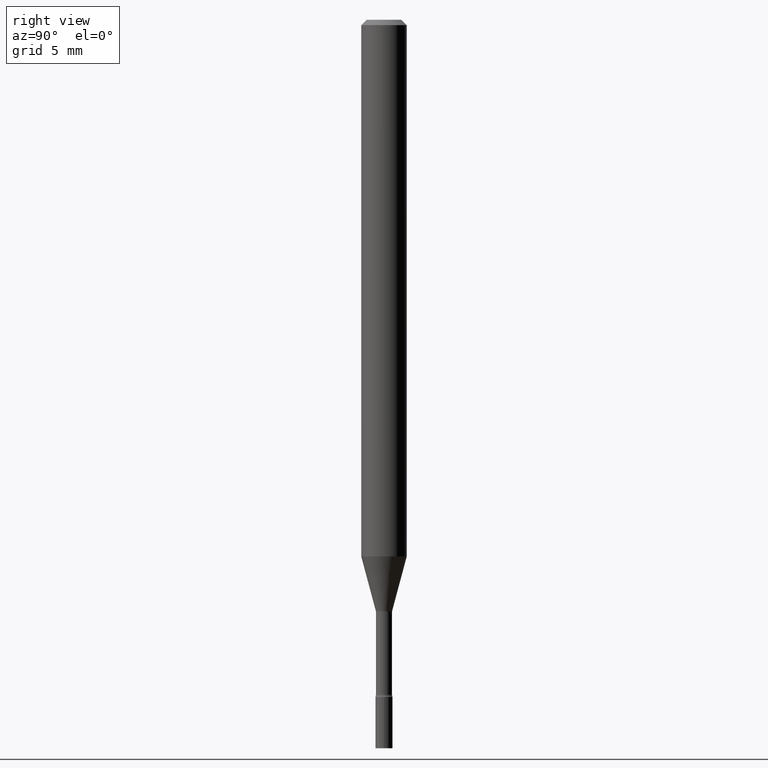
[diagram: clean part render]
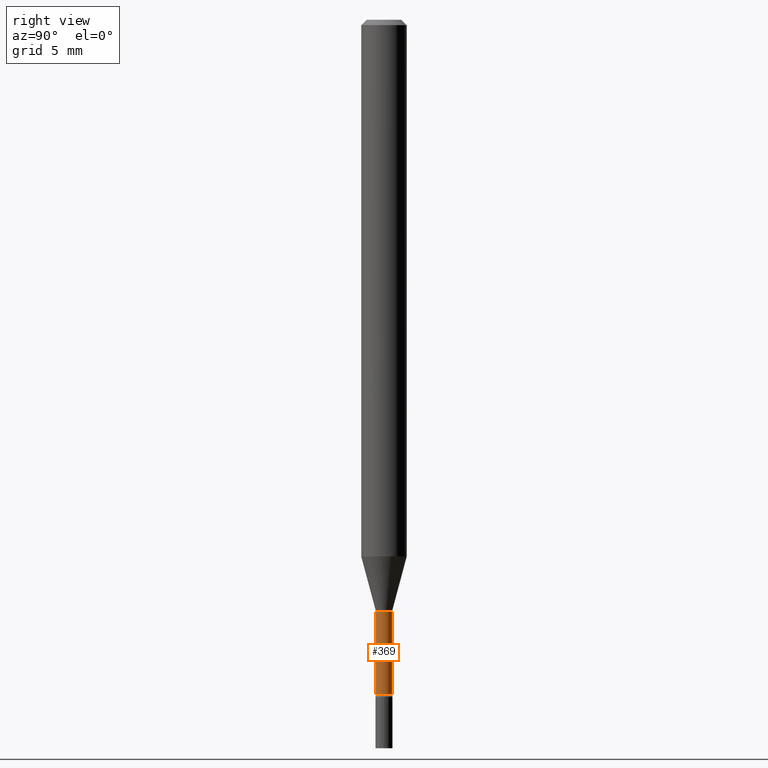
[diagram: same view with one face highlighted and labeled with its STEP entity id]
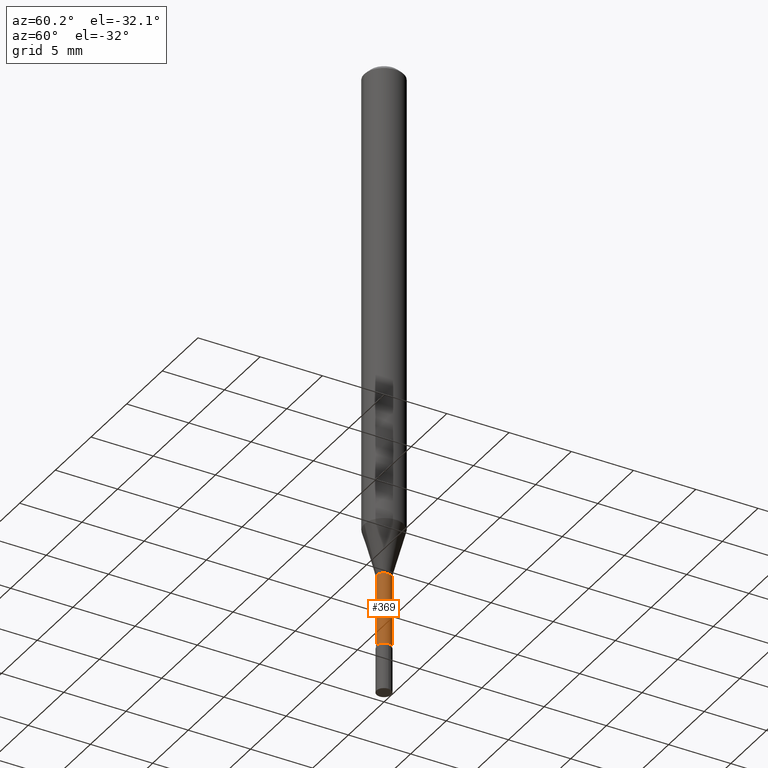
[diagram: same view with one face highlighted and labeled with its STEP entity id]
A machine part, right view. The second image highlights one B-rep face of the part: STEP entity #369.
A second angle (auxiliary view) of the same face is appended — the face is thin or edge-on in the first view.
In plain terms, the highlighted cylindrical surface (edge-blend (fillet) strip) has radius 0.5613 mm, axis along (-0, 0, 1).
Its self-contained STEP definition (entity closure, byte-faithful):
#5 = ORIENTED_EDGE ( 'NONE', *, *, #213, .F. ) ;
#11 = VERTEX_POINT ( 'NONE', #322 ) ;
#18 = VECTOR ( 'NONE', #87, 39.37007874015748143 ) ;
#62 = ORIENTED_EDGE ( 'NONE', *, *, #95, .F. ) ;
#63 = EDGE_CURVE ( 'NONE', #64, #11, #255, .T. ) ;
#64 = VERTEX_POINT ( 'NONE', #510 ) ;
#67 = CARTESIAN_POINT ( 'NONE',  ( 3.976237183870775578E-29, -5.677108513716717305E-15, -1.625974787463811078 ) ) ;
#73 = CARTESIAN_POINT ( 'NONE',  ( -1.543234751768267479E-16, -0.02210000000000568107, -1.625974787463811078 ) ) ;
#81 = LINE ( 'NONE', #165, #18 ) ;
#87 = DIRECTION ( 'NONE',  ( -2.445448240973584878E-29, 3.491510789396586948E-15, 1.000000000000000000 ) ) ;
#95 = EDGE_CURVE ( 'NONE', #104, #208, #181, .T. ) ;
#104 = VERTEX_POINT ( 'NONE', #73 ) ;
#133 = FACE_OUTER_BOUND ( 'NONE', #210, .T. ) ;
#165 = CARTESIAN_POINT ( 'NONE',  ( -1.543234751768666594E-16, -0.02210000000000002587, 7.716238844566465556E-17 ) ) ;
#181 = CIRCLE ( 'NONE', #234, 0.02210000000000000506 ) ;
#208 = VERTEX_POINT ( 'NONE', #292 ) ;
#210 = EDGE_LOOP ( 'NONE', ( #282, #503, #62, #5 ) ) ;
#213 = EDGE_CURVE ( 'NONE', #64, #104, #81, .T. ) ;
#220 = CARTESIAN_POINT ( 'NONE',  ( 0.000000000000000000, 0.000000000000000000, 0.000000000000000000 ) ) ;
#229 = DIRECTION ( 'NONE',  ( -6.982962677686265922E-15, -1.000000000000000000, 0.000000000000000000 ) ) ;
#232 = EDGE_CURVE ( 'NONE', #11, #208, #240, .T. ) ;
#234 = AXIS2_PLACEMENT_3D ( 'NONE', #67, #397, #509 ) ;
#240 = LINE ( 'NONE', #516, #274 ) ;
#255 = CIRCLE ( 'NONE', #298, 0.02210000000000004669 ) ;
#269 = DIRECTION ( 'NONE',  ( -2.445448240973584878E-29, 3.491510789396586553E-15, 1.000000000000000000 ) ) ;
#274 = VECTOR ( 'NONE', #333, 39.37007874015748143 ) ;
#282 = ORIENTED_EDGE ( 'NONE', *, *, #63, .T. ) ;
#290 = DIRECTION ( 'NONE',  ( -2.445448240973584878E-29, 3.491510789396586553E-15, 1.000000000000000000 ) ) ;
#292 = CARTESIAN_POINT ( 'NONE',  ( 1.570299446030275858E-16, 0.02209999999999432904, -1.625974787463811078 ) ) ;
#298 = AXIS2_PLACEMENT_3D ( 'NONE', #471, #269, #229 ) ;
#322 = CARTESIAN_POINT ( 'NONE',  ( 1.620037437533483063E-16, 0.02209999999999358311, -1.852672283192177582 ) ) ;
#333 = DIRECTION ( 'NONE',  ( -2.445448240973584878E-29, 3.491510789396586948E-15, 1.000000000000000000 ) ) ;
#369 = ADVANCED_FACE ( 'NONE', ( #133 ), #384, .T. ) ;
#384 = CYLINDRICAL_SURFACE ( 'NONE', #483, 0.02210000000000002587 ) ;
#397 = DIRECTION ( 'NONE',  ( -2.445448240973584878E-29, 3.491510789396586553E-15, 1.000000000000000000 ) ) ;
#402 = DIRECTION ( 'NONE',  ( -6.982962677686265922E-15, -1.000000000000000000, 3.491510789396586553E-15 ) ) ;
#471 = CARTESIAN_POINT ( 'NONE',  ( 4.530614176032826232E-29, -6.468625265981497210E-15, -1.852672283192177582 ) ) ;
#483 = AXIS2_PLACEMENT_3D ( 'NONE', #220, #290, #402 ) ;
#503 = ORIENTED_EDGE ( 'NONE', *, *, #232, .T. ) ;
#509 = DIRECTION ( 'NONE',  ( -6.982962677686265922E-15, -1.000000000000000000, 0.000000000000000000 ) ) ;
#510 = CARTESIAN_POINT ( 'NONE',  ( -1.543234751768214971E-16, -0.02210000000000651374, -1.852672283192177582 ) ) ;
#516 = CARTESIAN_POINT ( 'NONE',  ( 1.570299446029823003E-16, 0.02210000000000002587, -7.716238844566465556E-17 ) ) ;